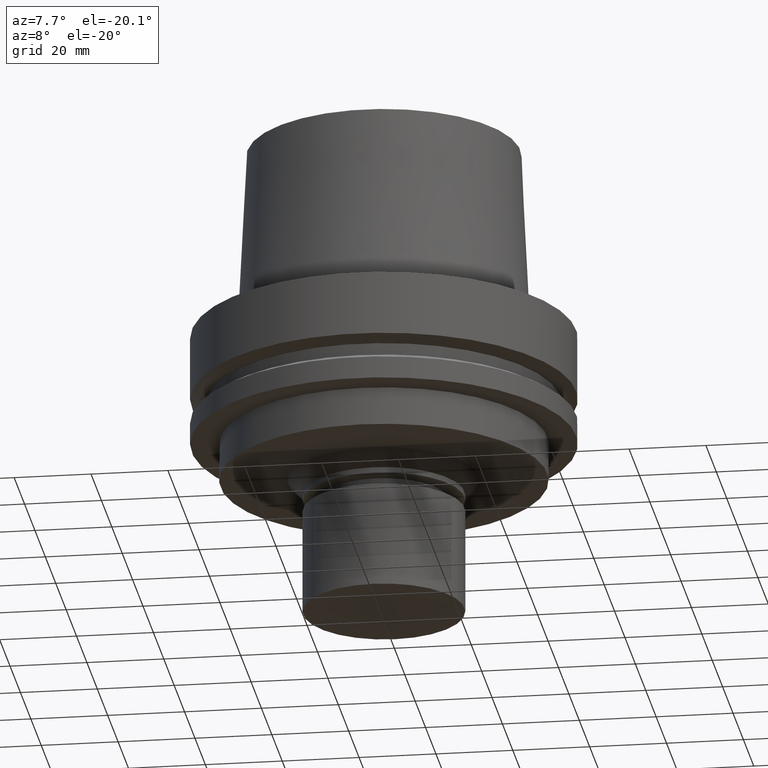
[diagram: clean part render]
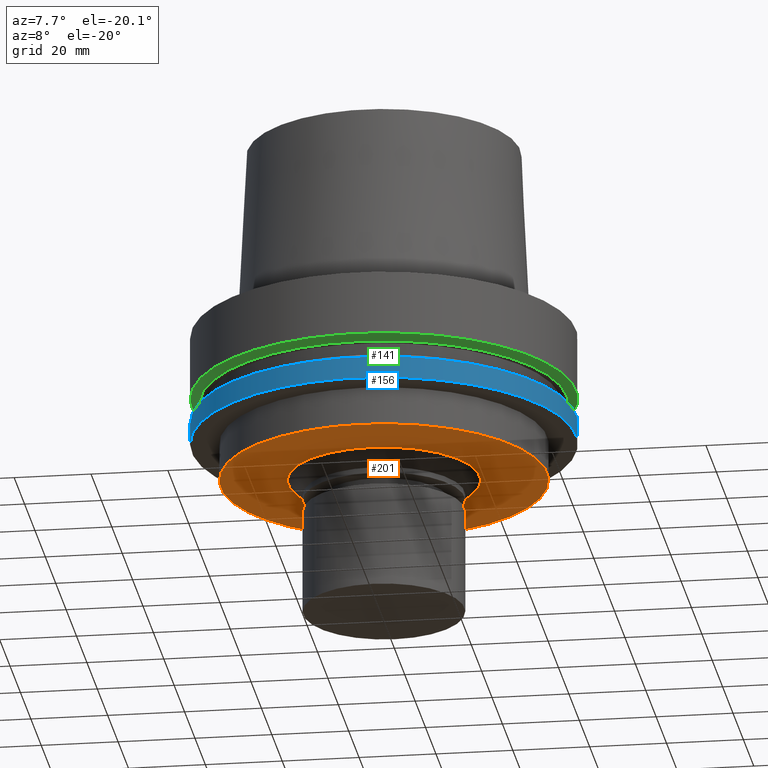
[diagram: same view with three faces highlighted in distinct colors, each labeled with its STEP entity id]
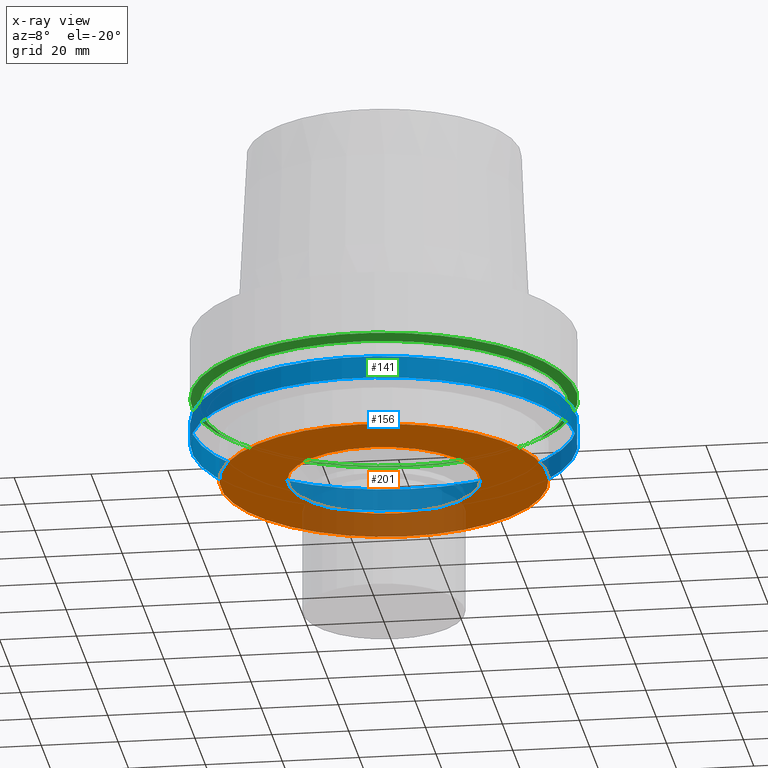
[diagram: x-ray of the same camera — body ghosted, the three highlighted faces saturated]
A machine part, auxiliary view with three faces highlighted in distinct colors.
The next image is the same camera in x-ray (body ghosted, the three faces saturated) — at least one of them is partly hidden behind the body in this view.
Their STEP definitions:

[orange] entity #201 — the highlighted planar face has unit normal (0, 0, -1).
#81=EDGE_CURVE('Unnamed[1]',#222,#222,#223,.T.);
#168=EDGE_CURVE('Unnamed[1]',#355,#355,#356,.T.);
#201=ADVANCED_FACE('Unnamed[1]',(#406,#407),#408,.T.);
#222=VERTEX_POINT('',#422);
#223=CIRCLE('',#423,25.0);
#355=VERTEX_POINT('',#589);
#356=CIRCLE('',#590,42.5);
#406=FACE_BOUND('',#651,.T.);
#407=FACE_OUTER_BOUND('',#652,.T.);
#408=PLANE('',#653);
#422=CARTESIAN_POINT('',(2.38806125833734E-015,25.0,-39.0));
#423=AXIS2_PLACEMENT_3D('',#655,#656,#657);
#589=CARTESIAN_POINT('',(2.38806125833734E-015,42.5,-39.0));
#590=AXIS2_PLACEMENT_3D('',#802,#803,#804);
#651=EDGE_LOOP('',(#858));
#652=EDGE_LOOP('',(#859));
#653=AXIS2_PLACEMENT_3D('',#860,#861,#862);
#655=CARTESIAN_POINT('',(2.38806125833734E-015,4.77612251667468E-015,-39.0));
#656=DIRECTION('',(6.12323399573677E-017,1.22464679914735E-016,-1.0));
#657=DIRECTION('',(-1.23259516440783E-032,1.0,1.22464679914735E-016));
#802=CARTESIAN_POINT('',(2.38806125833734E-015,4.77612251667468E-015,-39.0));
#803=DIRECTION('',(6.12323399573677E-017,1.22464679914735E-016,-1.0));
#804=DIRECTION('',(-1.23259516440783E-032,1.0,1.22464679914735E-016));
#858=ORIENTED_EDGE('',*,*,#81,.F.);
#859=ORIENTED_EDGE('',*,*,#168,.T.);
#860=CARTESIAN_POINT('',(2.38806125833734E-015,33.75,-39.0));
#861=DIRECTION('',(6.12323399573677E-017,1.22464679914735E-016,-1.0));
#862=DIRECTION('',(-1.23259516440783E-032,1.0,1.22464679914735E-016));

[blue] entity #156 — the highlighted cylindrical surface (bore or boss wall) has radius 50 mm, axis along (0, 0, -1).
#83=EDGE_CURVE('Unnamed[1]',#225,#225,#226,.T.);
#93=EDGE_CURVE('Unnamed[1]',#240,#240,#241,.T.);
#156=ADVANCED_FACE('Unnamed[1]',(#335,#336),#337,.T.);
#225=VERTEX_POINT('',#426);
#226=CIRCLE('',#427,50.0);
#240=VERTEX_POINT('',#445);
#241=CIRCLE('',#446,50.0);
#335=FACE_BOUND('',#564,.T.);
#336=FACE_BOUND('',#565,.T.);
#337=CYLINDRICAL_SURFACE('',#566,50.0);
#426=CARTESIAN_POINT('',(1.77573785876366E-015,50.0,-29.0));
#427=AXIS2_PLACEMENT_3D('',#658,#659,#660);
#445=CARTESIAN_POINT('',(1.42350465615161E-015,50.0,-23.24759526));
#446=AXIS2_PLACEMENT_3D('',#675,#676,#677);
#564=EDGE_LOOP('',(#779));
#565=EDGE_LOOP('',(#780));
#566=AXIS2_PLACEMENT_3D('',#781,#782,#783);
#658=CARTESIAN_POINT('',(1.77573785876366E-015,3.55147571752733E-015,-29.0));
#659=DIRECTION('',(6.12323399573677E-017,1.22464679914735E-016,-1.0));
#660=DIRECTION('',(-1.23259516440783E-032,1.0,1.22464679914735E-016));
#675=CARTESIAN_POINT('',(1.42350465615161E-015,2.84700931230322E-015,-23.24759526));
#676=DIRECTION('',(6.12323399573677E-017,1.22464679914735E-016,-1.0));
#677=DIRECTION('',(-1.23259516440783E-032,1.0,1.22464679914735E-016));
#779=ORIENTED_EDGE('',*,*,#83,.F.);
#780=ORIENTED_EDGE('',*,*,#93,.T.);
#781=CARTESIAN_POINT('',(1.59962125745764E-015,3.19924251491527E-015,-26.12379763));
#782=DIRECTION('',(6.12323399573677E-017,1.22464679914735E-016,-1.0));
#783=DIRECTION('',(-1.23259516440783E-032,1.0,1.22464679914735E-016));

[green] entity #141 — the highlighted conical surface has half-angle 60 deg.
#91=EDGE_CURVE('Unnamed[1]',#237,#237,#238,.T.);
#141=ADVANCED_FACE('Unnamed[1]',(#312,#313),#314,.T.);
#158=EDGE_CURVE('Unnamed[1]',#339,#339,#340,.T.);
#237=VERTEX_POINT('',#441);
#238=CIRCLE('',#442,50.0);
#312=FACE_BOUND('',#535,.T.);
#313=FACE_BOUND('',#536,.T.);
#314=CONICAL_SURFACE('',#537,48.81129763,1.04719755328238);
#339=VERTEX_POINT('',#569);
#340=CIRCLE('',#570,47.62259526);
#441=CARTESIAN_POINT('',(1.0257889421431E-015,50.0,-16.75240474));
#442=AXIS2_PLACEMENT_3D('',#672,#673,#674);
#535=EDGE_LOOP('',(#753));
#536=EDGE_LOOP('',(#754));
#537=AXIS2_PLACEMENT_3D('',#755,#756,#757);
#569=CARTESIAN_POINT('',(1.10983616172729E-015,47.62259526,-18.125));
#570=AXIS2_PLACEMENT_3D('',#784,#785,#786);
#672=CARTESIAN_POINT('',(1.0257889421431E-015,2.05157788428619E-015,-16.75240474));
#673=DIRECTION('',(6.12323399573677E-017,1.22464679914735E-016,-1.0));
#674=DIRECTION('',(-1.23259516440783E-032,1.0,1.22464679914735E-016));
#753=ORIENTED_EDGE('',*,*,#158,.F.);
#754=ORIENTED_EDGE('',*,*,#91,.T.);
#755=CARTESIAN_POINT('',(1.06781255193519E-015,2.13562510387039E-015,-17.43870237));
#756=DIRECTION('',(-6.12323399573677E-017,-1.22464679914735E-016,1.0));
#757=DIRECTION('',(-1.23259516440783E-032,1.0,1.22464679914735E-016));
#784=CARTESIAN_POINT('',(1.10983616172729E-015,2.21967232345458E-015,-18.125));
#785=DIRECTION('',(6.12323399573676E-017,1.22464679914735E-016,-1.0));
#786=DIRECTION('',(-1.23259516440783E-032,1.0,1.22464679914735E-016));